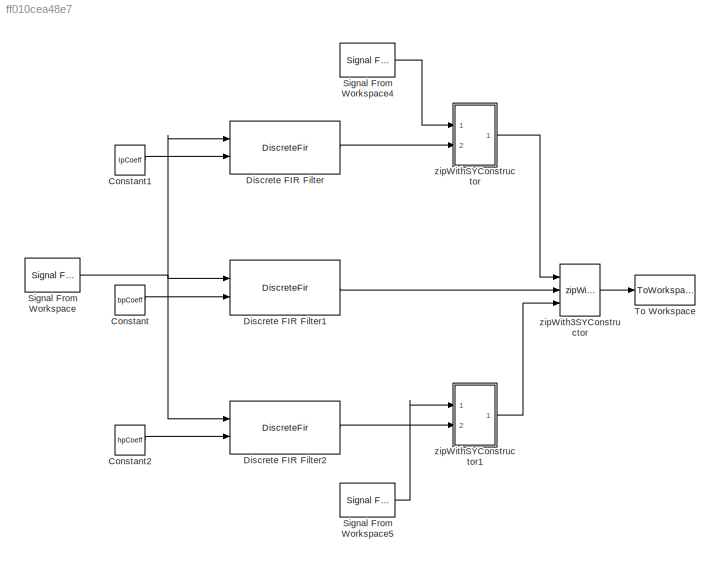
MODEL slx_ff010cea48e7
KIND model
CONFIG AbsTol = auto
CONFIG EnableMultiTasking = off
CONFIG FixedStep = auto
CONFIG MaxStep = auto
CONFIG MinStep = auto
CONFIG RelTol = 1e-3
CONFIG SampleTimeConstraint = Unconstrained
CONFIG SolverName = VariableStepAuto
CONFIG StartTime = 0.0
CONFIG StopTime = 1000000
BLOCK [Constant] Constant
  Value = bpCoeff
BLOCK [Constant] Constant1
  Value = lpCoeff
BLOCK [Constant] Constant2
  Value = hpCoeff
BLOCK [DiscreteFir] Discrete FIR Filter
  CoefSource = Input port
  InputPortMap = u0,u1
  OutputPortMap = o0
  Ports = [2, 1]
BLOCK [DiscreteFir] Discrete FIR Filter1
  CoefSource = Input port
  Coefficients = [0.0631876133978400 0.0813165121768200 0.0956232670043200 0.104783444329680 0.107936294048860 0.104783444329680 0.0956232670043200 0.0813165121768200 0.0631876133978400]
  InputPortMap = u0,u1
  OutputPortMap = o0
  Ports = [2, 1]
BLOCK [DiscreteFir] Discrete FIR Filter2
  CoefSource = Input port
  InputPortMap = u0,u1
  OutputPortMap = o0
  Ports = [2, 1]
BLOCK [Reference] Signal From Workspace  REF=dspsrcs4/Signal From
Workspace
  Ports = [0, 1]
  SourceBlock = dspsrcs4/Signal From\nWorkspace
  SourceProductBaseCode = DS
  SourceType = Signal From Workspace
BLOCK [Reference] Signal From Workspace4  REF=dspsrcs4/Signal From
Workspace
  Ports = [0, 1]
  SourceBlock = dspsrcs4/Signal From\nWorkspace
  SourceProductBaseCode = DS
  SourceType = Signal From Workspace
BLOCK [Reference] Signal From Workspace5  REF=dspsrcs4/Signal From
Workspace
  Ports = [0, 1]
  SourceBlock = dspsrcs4/Signal From\nWorkspace
  SourceProductBaseCode = DS
  SourceType = Signal From Workspace
BLOCK [ToWorkspace] To Workspace
  MaxDataPoints = inf
  Ports = [1]
  SampleTime = -1
  SaveFormat = Timeseries
  VariableName = simout
BLOCK [Reference] zipWith3SYConstructor  REF=SimulinkForSyDe/zipWith3SYConstructor
  Ports = [3, 1]
  SourceBlock = SimulinkForSyDe/zipWith3SYConstructor
  SourceProductName = Simulink ForSyDe
  SourceType = SubSystem
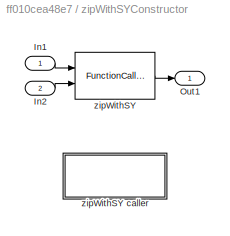
BLOCK [SubSystem] zipWithSYConstructor
  AncestorBlock = SimulinkForSyDe/zipWithSYConstructor
  Ports = [2, 1]
  RequestExecContextInheritance = off
BLOCK [Inport] zipWithSYConstructor/In1
BLOCK [Inport] zipWithSYConstructor/In2
  Port = 2
BLOCK [Outport] zipWithSYConstructor/Out1
BLOCK [FunctionCaller] zipWithSYConstructor/zipWithSY
  FunctionPrototype = y = zipWithSYf(u,u1)
  InputArgumentSpecifications = <Enter example>
  OutputArgumentSpecifications = <Enter example>
  Ports = [2, 1]
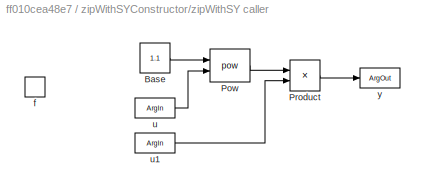
BLOCK [SubSystem] zipWithSYConstructor/zipWithSY caller
  Ports = [0, 0, 0, 1]
  RequestExecContextInheritance = off
  TreatAsAtomicUnit = on
BLOCK [Constant] zipWithSYConstructor/zipWithSY caller/Base
  Value = 1.1
BLOCK [Math] zipWithSYConstructor/zipWithSY caller/Pow
  Operator = pow
  Ports = [2, 1]
  RndMeth = Zero
  SignedPower = on
BLOCK [Product] zipWithSYConstructor/zipWithSY caller/Product
  Ports = [2, 1]
BLOCK [TriggerPort] zipWithSYConstructor/zipWithSY caller/f
  FunctionName = zipWithSYf
  FunctionVisibility = scoped
  IsSimulinkFunction = on
  Ports = []
  StatesWhenEnabling = held
  TriggerType = function-call
  VariantControl = (inherit)
BLOCK [ArgIn] zipWithSYConstructor/zipWithSY caller/u
  ArgumentName = u
  DisableCoverage = on
BLOCK [ArgIn] zipWithSYConstructor/zipWithSY caller/u1
  ArgumentName = u1
  DisableCoverage = on
  Port = 2
BLOCK [ArgOut] zipWithSYConstructor/zipWithSY caller/y
  ArgumentName = y
  DisableCoverage = on
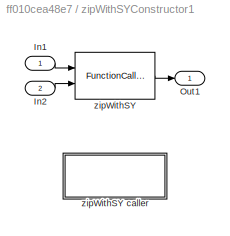
BLOCK [SubSystem] zipWithSYConstructor1
  AncestorBlock = SimulinkForSyDe/zipWithSYConstructor
  Ports = [2, 1]
  RequestExecContextInheritance = off
BLOCK [Inport] zipWithSYConstructor1/In1
BLOCK [Inport] zipWithSYConstructor1/In2
  Port = 2
BLOCK [Outport] zipWithSYConstructor1/Out1
BLOCK [FunctionCaller] zipWithSYConstructor1/zipWithSY
  FunctionPrototype = y = zipWithSYf(u,u1)
  InputArgumentSpecifications = <Enter example>
  OutputArgumentSpecifications = <Enter example>
  Ports = [2, 1]
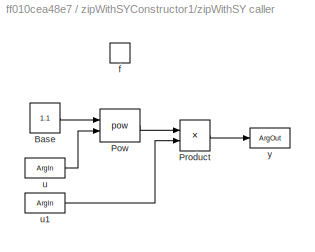
BLOCK [SubSystem] zipWithSYConstructor1/zipWithSY caller
  Ports = [0, 0, 0, 1]
  RequestExecContextInheritance = off
  TreatAsAtomicUnit = on
BLOCK [Constant] zipWithSYConstructor1/zipWithSY caller/Base
  Value = 1.1
BLOCK [Math] zipWithSYConstructor1/zipWithSY caller/Pow
  Operator = pow
  Ports = [2, 1]
  RndMeth = Zero
  SignedPower = on
BLOCK [Product] zipWithSYConstructor1/zipWithSY caller/Product
  Ports = [2, 1]
BLOCK [TriggerPort] zipWithSYConstructor1/zipWithSY caller/f
  FunctionName = zipWithSYf
  FunctionVisibility = scoped
  IsSimulinkFunction = on
  Ports = []
  StatesWhenEnabling = held
  TriggerType = function-call
  VariantControl = (inherit)
BLOCK [ArgIn] zipWithSYConstructor1/zipWithSY caller/u
  ArgumentName = u
  DisableCoverage = on
BLOCK [ArgIn] zipWithSYConstructor1/zipWithSY caller/u1
  ArgumentName = u1
  DisableCoverage = on
  Port = 2
BLOCK [ArgOut] zipWithSYConstructor1/zipWithSY caller/y
  ArgumentName = y
  DisableCoverage = on
LINE Constant1:1 -> Discrete FIR Filter:2
LINE Constant2:1 -> Discrete FIR Filter2:2
LINE Constant:1 -> Discrete FIR Filter1:2
LINE Discrete FIR Filter1:1 -> zipWith3SYConstructor:2
LINE Discrete FIR Filter2:1 -> zipWithSYConstructor1:2
LINE Discrete FIR Filter:1 -> zipWithSYConstructor:2
LINE Signal From Workspace4:1 -> zipWithSYConstructor:1
LINE Signal From Workspace5:1 -> zipWithSYConstructor1:1
NET Signal From Workspace:1 -> Discrete FIR Filter1:1, Discrete FIR Filter2:1, Discrete FIR Filter:1
LINE zipWith3SYConstructor:1 -> To Workspace:1
LINE zipWithSYConstructor1:1 -> zipWith3SYConstructor:3
LINE zipWithSYConstructor:1 -> zipWith3SYConstructor:1
note: NET lines group one-source signal fan-out (src -> all destinations, sorted); 1:1 wires keep LINE
